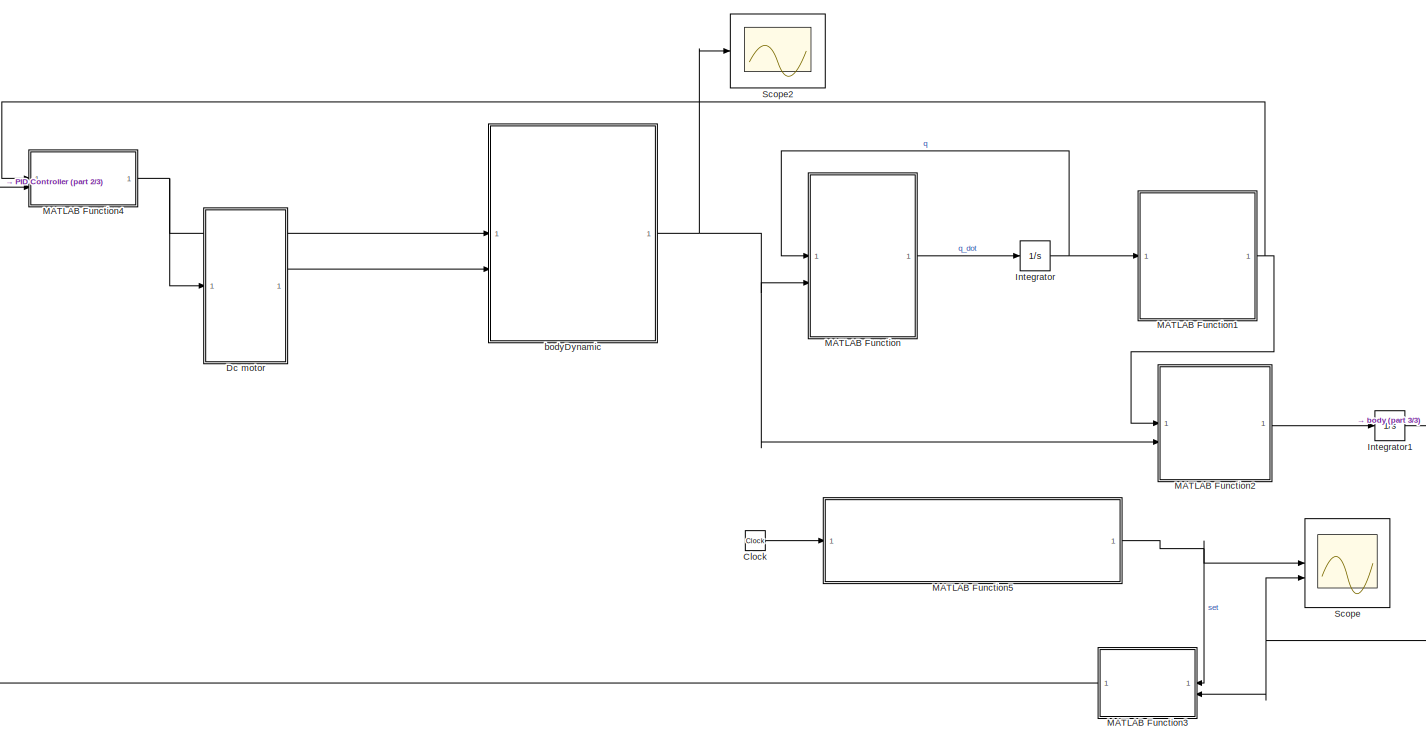
[diagram: root canvas - part 1/3, center side, full height]
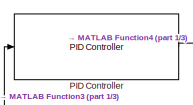
[diagram: root canvas - part 2/3, top left region]
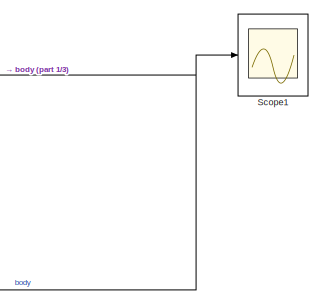
[diagram: root canvas - part 3/3, bottom right region]
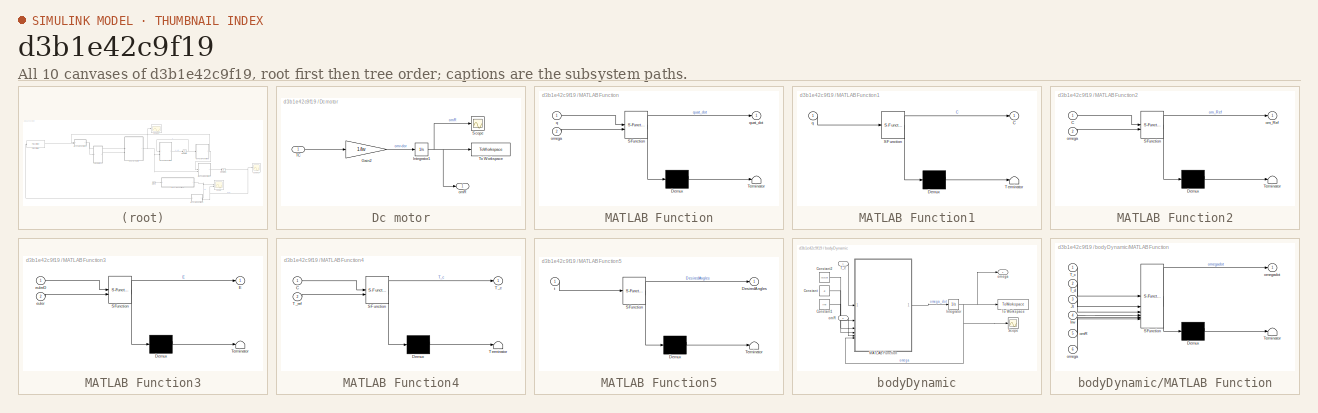
[diagram: thumbnail index - all 10 canvases of the model, root first then tree order]
MODEL slx_d3b1e42c9f19
KIND model
CONFIG AbsTol = auto
CONFIG EnableMultiTasking = off
CONFIG FixedStep = auto
CONFIG MaxStep = auto
CONFIG MinStep = auto
CONFIG RelTol = 1e-3
CONFIG SampleTimeConstraint = Unconstrained
CONFIG SolverName = VariableStepAuto
CONFIG StartTime = 0.0
CONFIG StopTime = 240
BLOCK [Clock] Clock
BLOCK [SubSystem] Dc motor
BLOCK [Gain] Dc motor/Gain2
  Gain = 1/Iw
BLOCK [Integrator] Dc motor/Integrator1
  InitialCondition = [0;0;0]
BLOCK [Scope] Dc motor/Scope
  Floating = off
  NumInputPorts = 1
  ScopeSpecificationString = Simulink.scopes.TimeScopeBlockCfg('CurrentConfiguration', extmgr.ConfigurationSet(extmgr.Configuration('Core','General UI',true),extmgr.Configuration('Core','Source UI',true),extmgr.Configuration('Sources','WiredSimulink',true),extmgr.Configuration('Visuals','Time Domain',true,'SerializedDisplays',{struct('MinYLimReal','-24765828857.24994','MaxYLimReal','2777712138.05956','YLabelReal','','MinYLimM...<+1417ch>
BLOCK [Inport] Dc motor/TC
BLOCK [ToWorkspace] Dc motor/To Workspace
  FixptAsFi = on
  MaxDataPoints = inf
  SampleTime = -1
  SaveFormat = Timeseries
  VariableName = wheel_speed
BLOCK [Outport] Dc motor/omR
BLOCK [Integrator] Integrator
  InitialCondition = Q
BLOCK [Integrator] Integrator1
  InitialCondition = eul0
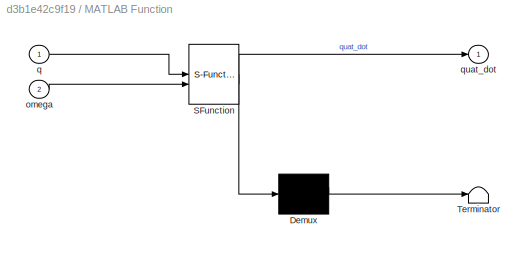
BLOCK [SubSystem] MATLAB Function
  ErrorFcn = Stateflow.Translate.translate
  PermitHierarchicalResolution = ExplicitOnly
  SFBlockType = MATLAB Function
  TreatAsAtomicUnit = on
BLOCK [Demux] MATLAB Function/ Demux 
  Outputs = 1
BLOCK [S-Function] MATLAB Function/ SFunction 
  EnableBusSupport = on
  FunctionName = sf_sfun
  PortCounts = [2 2]
  SFcnIsStateOwnerBlock = off
  SFunctionDeploymentMode = off
  Tag = Stateflow S-Function 1
BLOCK [Terminator] MATLAB Function/ Terminator 
BLOCK [Inport] MATLAB Function/omega
  Port = 2
BLOCK [Inport] MATLAB Function/q
BLOCK [Outport] MATLAB Function/quat_dot
BLOCK [SubSystem] MATLAB Function1
  ErrorFcn = Stateflow.Translate.translate
  PermitHierarchicalResolution = ExplicitOnly
  SFBlockType = MATLAB Function
  TreatAsAtomicUnit = on
BLOCK [Demux] MATLAB Function1/ Demux 
  Outputs = 1
BLOCK [S-Function] MATLAB Function1/ SFunction 
  EnableBusSupport = on
  FunctionName = sf_sfun
  PortCounts = [1 2]
  SFcnIsStateOwnerBlock = off
  SFunctionDeploymentMode = off
  Tag = Stateflow S-Function 3
BLOCK [Terminator] MATLAB Function1/ Terminator 
BLOCK [Outport] MATLAB Function1/C
BLOCK [Inport] MATLAB Function1/q
BLOCK [SubSystem] MATLAB Function2
  ErrorFcn = Stateflow.Translate.translate
  PermitHierarchicalResolution = ExplicitOnly
  SFBlockType = MATLAB Function
  TreatAsAtomicUnit = on
BLOCK [Demux] MATLAB Function2/ Demux 
  Outputs = 1
BLOCK [S-Function] MATLAB Function2/ SFunction 
  EnableBusSupport = on
  FunctionName = sf_sfun
  PortCounts = [2 2]
  SFcnIsStateOwnerBlock = off
  SFunctionDeploymentMode = off
  Tag = Stateflow S-Function 4
BLOCK [Terminator] MATLAB Function2/ Terminator 
BLOCK [Inport] MATLAB Function2/C
BLOCK [Outport] MATLAB Function2/om_Ref
BLOCK [Inport] MATLAB Function2/omega
  Port = 2
BLOCK [SubSystem] MATLAB Function3
  ErrorFcn = Stateflow.Translate.translate
  PermitHierarchicalResolution = ExplicitOnly
  SFBlockType = MATLAB Function
  TreatAsAtomicUnit = on
BLOCK [Demux] MATLAB Function3/ Demux 
  Outputs = 1
BLOCK [S-Function] MATLAB Function3/ SFunction 
  EnableBusSupport = on
  FunctionName = sf_sfun
  PortCounts = [2 2]
  SFcnIsStateOwnerBlock = off
  SFunctionDeploymentMode = off
  Tag = Stateflow S-Function 5
BLOCK [Terminator] MATLAB Function3/ Terminator 
BLOCK [Outport] MATLAB Function3/E
BLOCK [Inport] MATLAB Function3/euler
  Port = 2
BLOCK [Inport] MATLAB Function3/eulerD
BLOCK [SubSystem] MATLAB Function4
  ErrorFcn = Stateflow.Translate.translate
  PermitHierarchicalResolution = ExplicitOnly
  SFBlockType = MATLAB Function
  TreatAsAtomicUnit = on
BLOCK [Demux] MATLAB Function4/ Demux 
  Outputs = 1
BLOCK [S-Function] MATLAB Function4/ SFunction 
  EnableBusSupport = on
  FunctionName = sf_sfun
  PortCounts = [2 2]
  SFcnIsStateOwnerBlock = off
  SFunctionDeploymentMode = off
  Tag = Stateflow S-Function 6
BLOCK [Terminator] MATLAB Function4/ Terminator 
BLOCK [Inport] MATLAB Function4/C
BLOCK [Outport] MATLAB Function4/T_c
BLOCK [Inport] MATLAB Function4/T_ref
  Port = 2
BLOCK [SubSystem] MATLAB Function5
  ErrorFcn = Stateflow.Translate.translate
  PermitHierarchicalResolution = ExplicitOnly
  SFBlockType = MATLAB Function
  TreatAsAtomicUnit = on
BLOCK [Demux] MATLAB Function5/ Demux 
  Outputs = 1
BLOCK [S-Function] MATLAB Function5/ SFunction 
  EnableBusSupport = on
  FunctionName = sf_sfun
  PortCounts = [1 2]
  SFcnIsStateOwnerBlock = off
  SFunctionDeploymentMode = off
  Tag = Stateflow S-Function 7
BLOCK [Terminator] MATLAB Function5/ Terminator 
BLOCK [Outport] MATLAB Function5/DesiredAngles
BLOCK [Inport] MATLAB Function5/t
BLOCK [Reference] PID Controller  REF=slpidlib/PID Controller
  LibrarySourceBlock = simulink/Continuous/PID Controller
  SourceBlock = slpidlib/PID Controller
  SourceType = PID 1dof
BLOCK [Scope] Scope
  Floating = off
  NumInputPorts = 2
  ScopeSpecificationString = Simulink.scopes.TimeScopeBlockCfg('CurrentConfiguration', extmgr.ConfigurationSet(extmgr.Configuration('Core','General UI',true),extmgr.Configuration('Core','Source UI',true),extmgr.Configuration('Sources','WiredSimulink',true,'DataLoggingVariableName','ScopeData1'),extmgr.Configuration('Visuals','Time Domain',true,'SerializedDisplays',{struct('MinYLimReal','-0.62402','MaxYLimReal','2.75386','YLab...<+1636ch>
BLOCK [Scope] Scope1
  Floating = off
  NumInputPorts = 1
  ScopeSpecificationString = Simulink.scopes.TimeScopeBlockCfg('CurrentConfiguration', extmgr.ConfigurationSet(extmgr.Configuration('Core','General UI',true),extmgr.Configuration('Core','Source UI',true),extmgr.Configuration('Sources','WiredSimulink',true,'DataLoggingVariableName','ScopeData2'),extmgr.Configuration('Visuals','Time Domain',true,'SerializedDisplays',{struct('MinYLimReal','-0.25016','MaxYLimReal','2.25071','YLab...<+1459ch>
BLOCK [Scope] Scope2
  Floating = off
  NumInputPorts = 1
  ScopeSpecificationString = Simulink.scopes.TimeScopeBlockCfg('CurrentConfiguration', extmgr.ConfigurationSet(extmgr.Configuration('Core','General UI',true),extmgr.Configuration('Core','Source UI',true),extmgr.Configuration('Sources','WiredSimulink',true,'DataLoggingVariableName','ScopeData1'),extmgr.Configuration('Visuals','Time Domain',true,'SerializedDisplays',{struct('MinYLimReal','-63.96805','MaxYLimReal','104.83717','Y...<+1487ch>
BLOCK [SubSystem] bodyDynamic
BLOCK [Constant] bodyDynamic/Constant
  Value = Jt
BLOCK [Constant] bodyDynamic/Constant1
  Value = Irw
BLOCK [Constant] bodyDynamic/Constant2
  Value = [0;0;0]
BLOCK [Integrator] bodyDynamic/Integrator
  InitialCondition = omega0
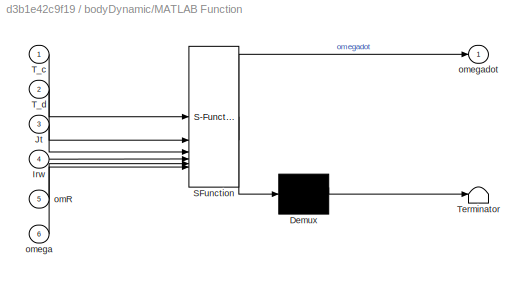
BLOCK [SubSystem] bodyDynamic/MATLAB Function
  ErrorFcn = Stateflow.Translate.translate
  PermitHierarchicalResolution = ExplicitOnly
  SFBlockType = MATLAB Function
  TreatAsAtomicUnit = on
BLOCK [Demux] bodyDynamic/MATLAB Function/ Demux 
  Outputs = 1
BLOCK [S-Function] bodyDynamic/MATLAB Function/ SFunction 
  EnableBusSupport = on
  FunctionName = sf_sfun
  PortCounts = [6 2]
  SFcnIsStateOwnerBlock = off
  SFunctionDeploymentMode = off
  Tag = Stateflow S-Function 2
BLOCK [Terminator] bodyDynamic/MATLAB Function/ Terminator 
BLOCK [Inport] bodyDynamic/MATLAB Function/Irw
  Port = 4
BLOCK [Inport] bodyDynamic/MATLAB Function/Jt
  Port = 3
BLOCK [Inport] bodyDynamic/MATLAB Function/T_c
BLOCK [Inport] bodyDynamic/MATLAB Function/T_d
  Port = 2
BLOCK [Inport] bodyDynamic/MATLAB Function/omR
  Port = 5
BLOCK [Inport] bodyDynamic/MATLAB Function/omega
  Port = 6
BLOCK [Outport] bodyDynamic/MATLAB Function/omegadot
BLOCK [Scope] bodyDynamic/Scope
  Floating = off
  NumInputPorts = 1
  ScopeSpecificationString = Simulink.scopes.TimeScopeBlockCfg('CurrentConfiguration', extmgr.ConfigurationSet(extmgr.Configuration('Core','General UI',true),extmgr.Configuration('Core','Source UI',true),extmgr.Configuration('Sources','WiredSimulink',true,'DataLoggingVariableName','ScopeData1'),extmgr.Configuration('Visuals','Time Domain',true,'SerializedDisplays',{struct('MinYLimReal','-179991.27496','MaxYLimReal','1595255.4...<+1494ch>
BLOCK [Inport] bodyDynamic/T_c
BLOCK [ToWorkspace] bodyDynamic/To Workspace
  FixptAsFi = on
  MaxDataPoints = inf
  SampleTime = -1
  SaveFormat = Timeseries
  VariableName = omega
BLOCK [Inport] bodyDynamic/omR
  Port = 2
BLOCK [Outport] bodyDynamic/omega
LINE Clock:1 -> MATLAB Function5:1
LINE Dc motor/Gain2:1 -> Dc motor/Integrator1:1
NET Dc motor/Integrator1:1 -> Dc motor/Scope:1, Dc motor/To Workspace:1, Dc motor/omR:1
LINE Dc motor/TC:1 -> Dc motor/Gain2:1
LINE Dc motor:1 -> bodyDynamic:2
NET Integrator1:1 -> MATLAB Function3:2, Scope1:1, Scope:2
NET Integrator:1 -> MATLAB Function1:1, MATLAB Function:1
NET MATLAB Function1:1 -> MATLAB Function2:1, MATLAB Function4:1
LINE MATLAB Function2:1 -> Integrator1:1
LINE MATLAB Function3:1 -> PID Controller:1
NET MATLAB Function4:1 -> Dc motor:1, bodyDynamic:1
NET MATLAB Function5:1 -> MATLAB Function3:1, Scope:1
LINE MATLAB Function:1 -> Integrator:1
LINE PID Controller:1 -> MATLAB Function4:2
LINE bodyDynamic/Constant1:1 -> bodyDynamic/MATLAB Function:4
LINE bodyDynamic/Constant2:1 -> bodyDynamic/MATLAB Function:2
LINE bodyDynamic/Constant:1 -> bodyDynamic/MATLAB Function:3
NET bodyDynamic/Integrator:1 -> bodyDynamic/MATLAB Function:6, bodyDynamic/Scope:1, bodyDynamic/To Workspace:1, bodyDynamic/omega:1
LINE bodyDynamic/MATLAB Function:1 -> bodyDynamic/Integrator:1
LINE bodyDynamic/T_c:1 -> bodyDynamic/MATLAB Function:1
LINE bodyDynamic/omR:1 -> bodyDynamic/MATLAB Function:5
NET bodyDynamic:1 -> MATLAB Function2:2, MATLAB Function:2, Scope2:1
note: NET lines group one-source signal fan-out (src -> all destinations, sorted); 1:1 wires keep LINE
CHART MATLAB Function states=1 transitions=1
  STATE_LABEL 'eML_blk_kernel()'
  STATE_LABEL 'SCRIPT:\nfunction quat_dot = quatDot(q,omega)\n\n\nquat_dot=0.5*([0 -omega(1) -omega(2) -omega(3); omega(1) 0 omega(3) -omega(2); omega(2) -omega(3) 0 omega(1); omega(3) omega(2) -omega(1) 0])*q;\n'
CHART bodyDynamic/MATLAB Function states=1 transitions=1
  STATE_LABEL 'eML_blk_kernel()'
  STATE_LABEL 'SCRIPT:\nfunction omegadot = MotionEquation(T_c,T_d,Jt,Irw,omR,omega)\n\nomegaS=[0 -omega(3) omega(2);\n    omega(3) 0 -omega(1);\n    -omega(2) omega(1) 0];\nomegadot=Jt\\(T_d+T_c-(omegaS)*(Jt*omega+Irw*omR));\n'
CHART MATLAB Function1 states=1 transitions=1
  STATE_LABEL 'eML_blk_kernel()'
  STATE_LABEL 'SCRIPT:\nfunction C = quat2rotm (q)\n\n\n\nC = [1 - 2*(q(3)^2 + q(4)^2),   2*(q(2)*q(3) - q(1)*q(4)),       2*(q(2)*q(4) + q(1)*q(3));\n     2*(q(2)*q(3) + q(1)*q(4)),   1 - 2*(q(2)^2 + q(4)^2),         2*(q(3)*q(4) - q(1)*q(2));\n     2*(q(2)*q(4) - q(1)*q(2)),       2*(q(3)*q(4) + q(1)*q(2)) ,  1 - 2*(q(2)^2 + q(3)^2)];\n'
CHART MATLAB Function2 states=1 transitions=1
  STATE_LABEL 'eML_blk_kernel()'
  STATE_LABEL 'SCRIPT:\nfunction om_Ref = Body2Ref(C , omega)\n\nom_Ref = C * omega;\n'
CHART MATLAB Function3 states=1 transitions=1
  STATE_LABEL 'eML_blk_kernel()'
  STATE_LABEL 'SCRIPT:\nfunction E = error(eulerD , euler)\n\nE = eulerD - euler;\n'
CHART MATLAB Function4 states=1 transitions=1
  STATE_LABEL 'eML_blk_kernel()'
  STATE_LABEL 'SCRIPT:\nfunction T_c = ref2body(C ,T_ref)\n\nT_c = transpose(C)* T_ref;\n'
CHART MATLAB Function5 states=1 transitions=1
  STATE_LABEL 'eML_blk_kernel()'
  STATE_LABEL 'SCRIPT:\nfunction DesiredAngles = trajectory(t)\nroll  = 0;\npitch = 2;\nyaw   = 2;\neulerD = [roll; pitch; yaw];\nDesiredAngles = eulerD;\n'
CHART  states=0 transitions=0
CHART  states=0 transitions=0
CHART  states=0 transitions=0
CHART  states=0 transitions=0
CHART  states=0 transitions=0
CHART  states=0 transitions=0
CHART  states=0 transitions=0
